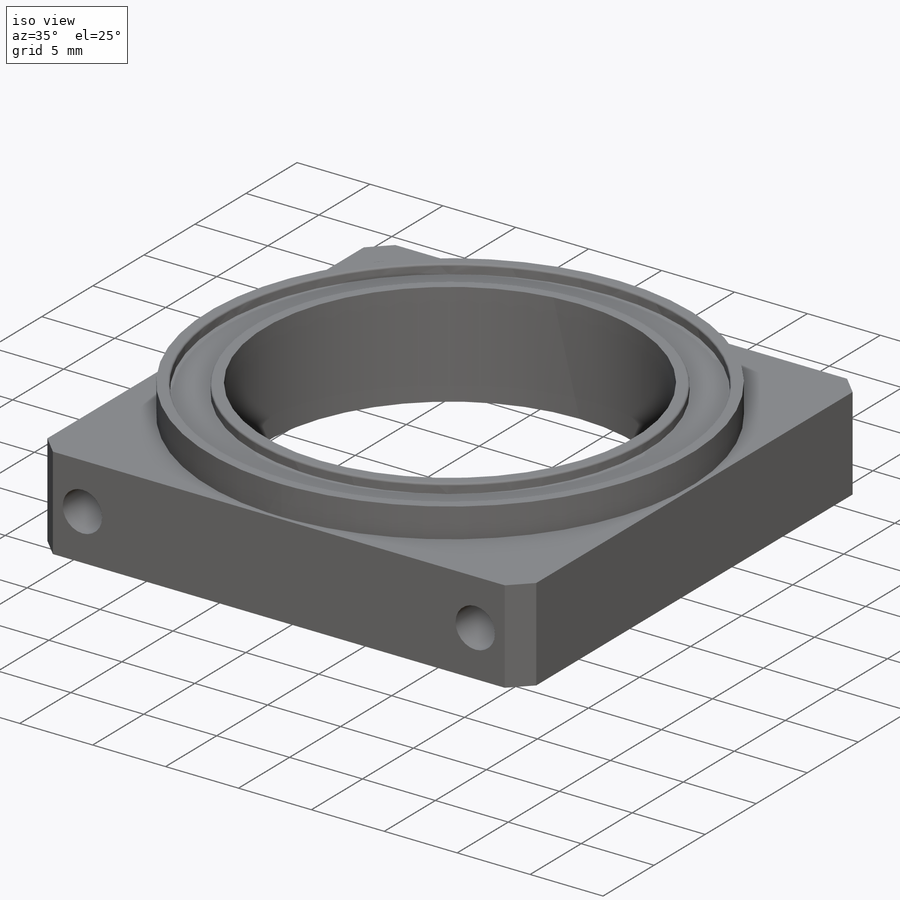
[diagram: iso view]
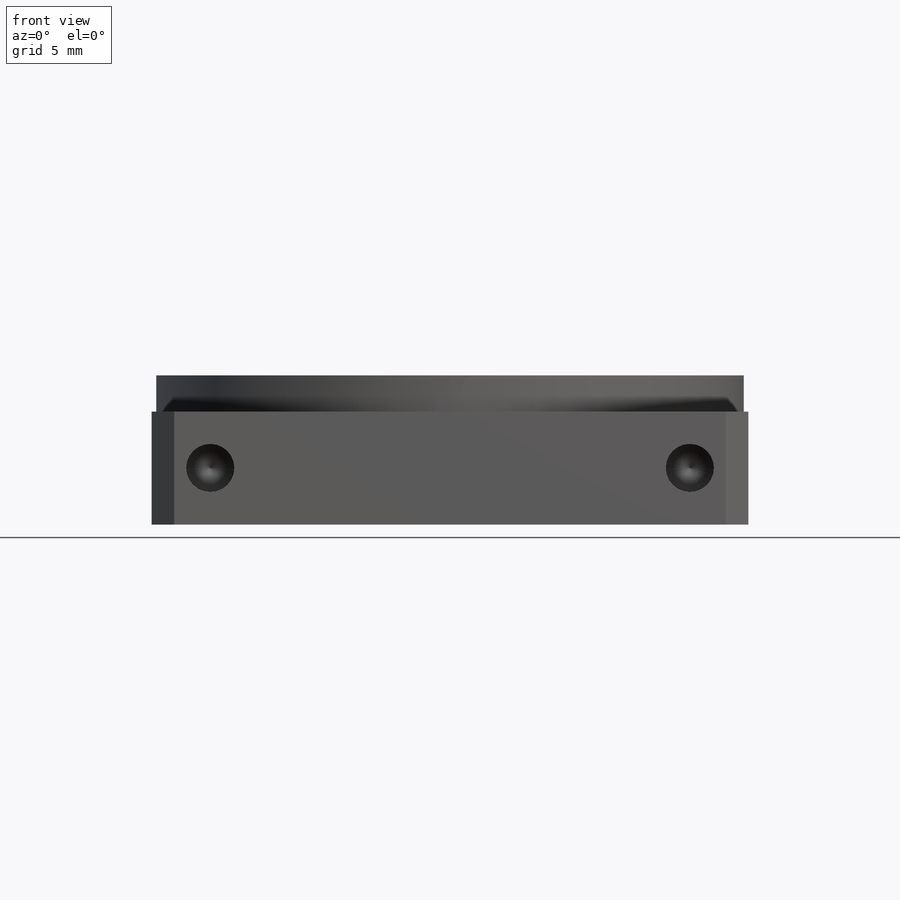
[diagram: front view]
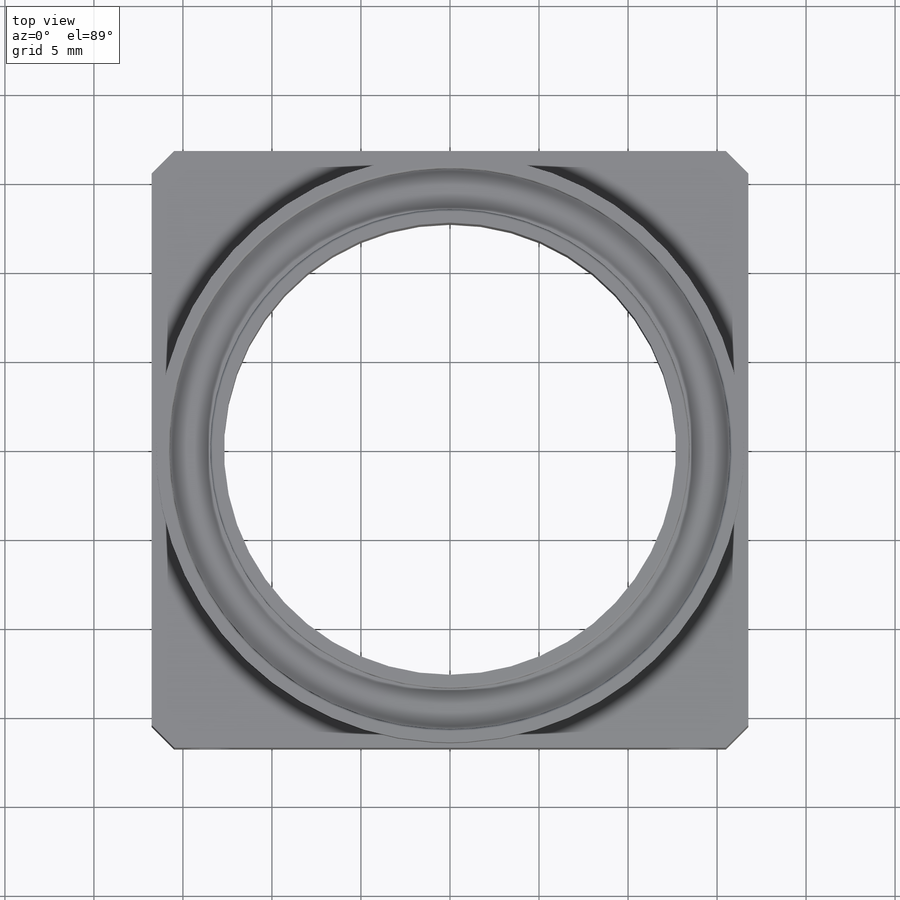
[diagram: top view]
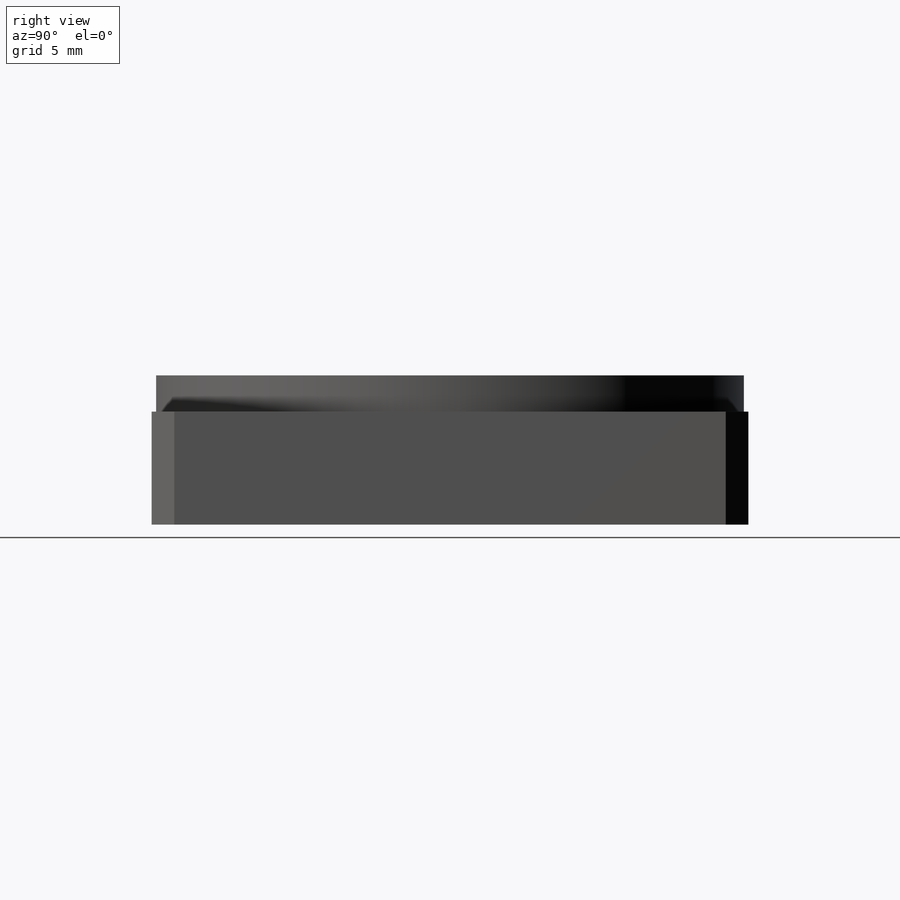
[diagram: right view]
SOLIDWORKS PART (.sldprt)
format: sldprt  version: not decoded by parser v0  size: 417,792 bytes
history: native  units: mm
features: sketch x7, extrude x4, thread x2, material x1, cut_extrude x1, fillet x1, hole x1, mirror x1 (+13 scaffold rows collapsed)
feature tree (31):
  scaffold x13  (default folders/planes/origin — collapsed)
  material  "1060 Alloy"
  sketch  "Sketch1"  dims[c1.D1=36.576mm c1.D5=31.75mm c1.D6=18.288mm c1.D2=37.338mm c1.D3=33.02mm c1.D4=16.51mm c2.D1=33.528mm c2.D6=33.528mm c2.D7=33.02mm c3.D6=~11.184198mm c3.D3=~11.184198mm]
  extrude  "Boss-Extrude1"  Depth=6.35mm
  sketch  "Sketch11"  dims[D1=33.02mm]
  cut_extrude  "Cut-Extrude1"  Depth=5.08mm
  sketch  "Sketch12"  dims[D1=0.762mm]
  extrude  "Boss-Extrude2"  Depth=7.112mm
  sketch  "Sketch13"  dims[D1=0.762mm]
  extrude  "Boss-Extrude3"  [1 undecoded]
  sketch  "Sketch15"
  extrude  "Boss-Extrude4"  Depth=0.635mm
  fillet  "Fillet1"  Radius=0.127mm
  hole  "#6-32 Tapped Hole1"  Diameter=2.7051mm Depth=4.91744mm
  sketch  "Sketch17"  dims[c1.D1=19.05mm c1.D2=19.05mm c1.D3=~15.413721mm c2.D3=45.0deg c2.D4=~12.124714mm]
  sketch  "Sketch16"  dims[hole-wizard template sketch: 47 standard entries collapsed; hole parameters kept: c15.Tap Drill Depth=~4.91744mm c15.D3=~14.816244mm c15.Drill Angle=118.0deg]
  thread  "Hole Thread1"  Diameter=2.54mm  [1 undecoded]
  thread  "Hole Thread2"  Diameter=2.54mm  [1 undecoded]
  mirror  "Mirror1"
decode coverage: 14 of 17 modeling features carry decoded parameters
note: ~ marks probable driven/reference dimensions
note: 3 parameter values undecoded
note: suppression state not decoded; provenance and decode notes live in map.json
